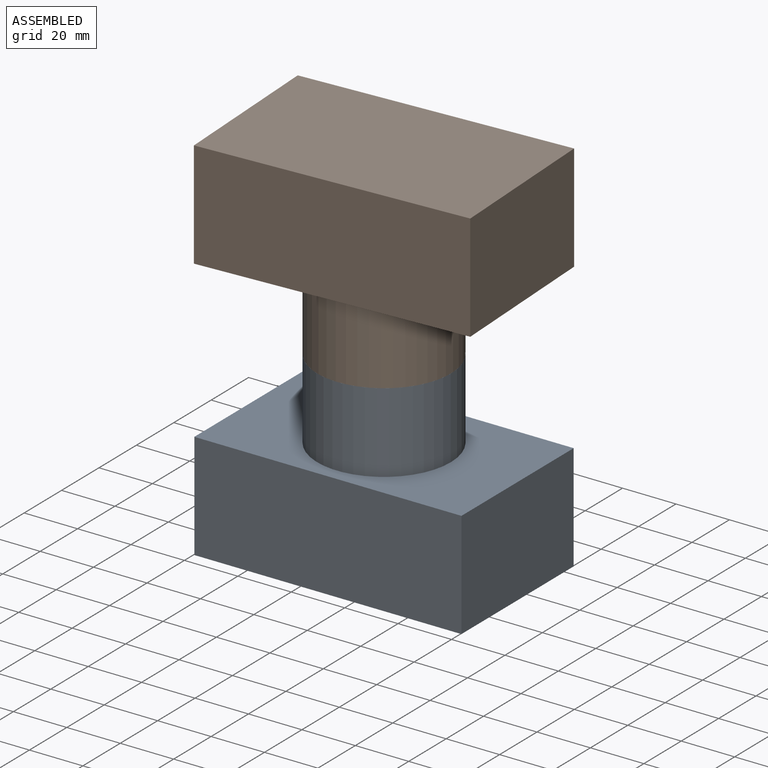
[diagram: assembled view]
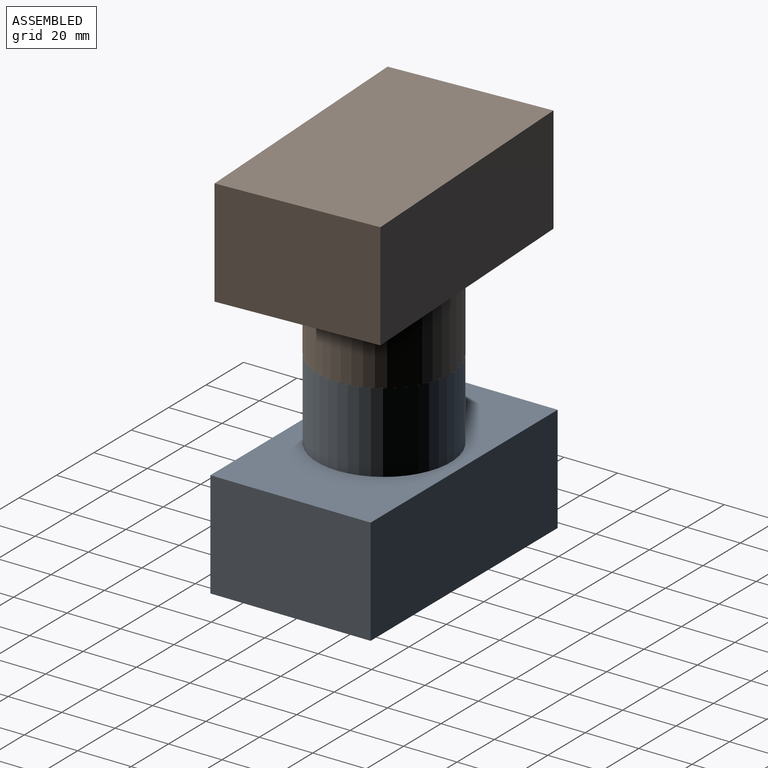
[diagram: assembled view, second angle]
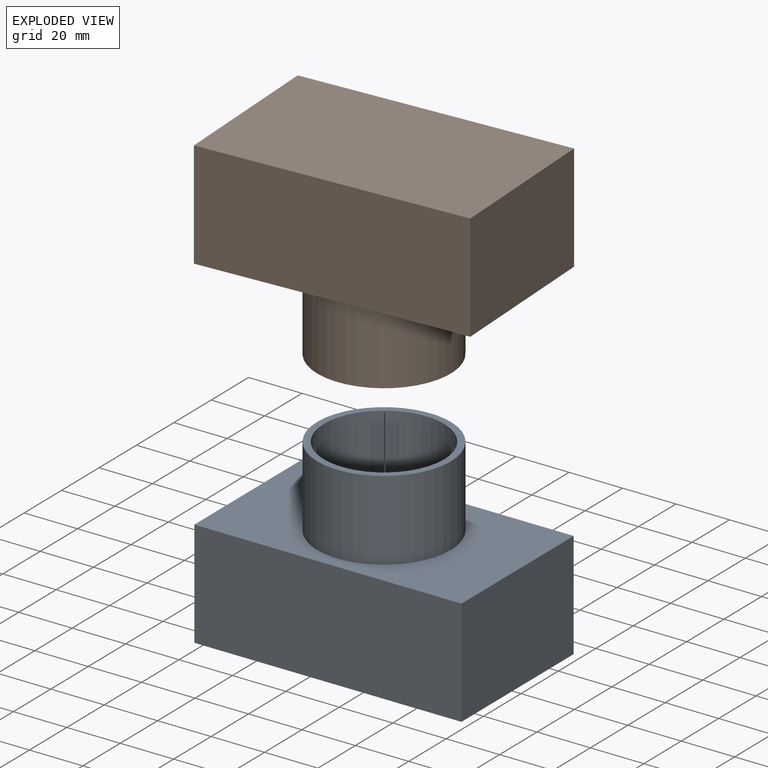
[diagram: exploded view]
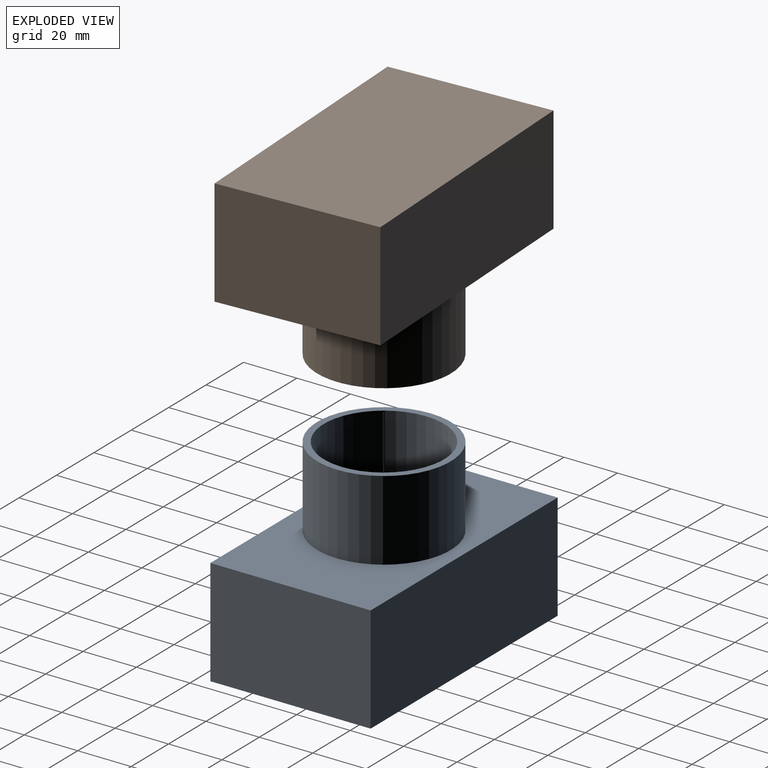
[diagram: exploded view, second angle]
ASSEMBLY  parts=2 mates=2
PART A: 15 faces, bbox 100x60x70 mm
  f0: plane 100x40mm, normal (0,-1,0), area 4000mm2, adj f1,f3,f4,f5
  f1: plane 60x40mm, normal (1,0,0), area 2400mm2, adj f0,f2,f4,f5
  f2: plane 100x40mm, normal (0,1,0), area 4000mm2, adj f1,f3,f4,f5
  f3: plane 60x40mm, normal (-1,0,0), area 2400mm2, adj f0,f2,f4,f5
  f4: plane 100x60mm, normal (0,0,1), area 4036.5mm2, adj f0,f1,f2,f3,f6
  f5: plane 100x60mm, normal (0,0,-1), area 6000mm2, adj f0,f1,f2,f3
  f6: cylinder r=25mm len=50mm, axis (0,0,-1), area 4712.4mm2, adj f4,f7
  f7: plane 50x50mm, normal (0,0,1), area 373.1mm2, adj f6,f14
  f8: plane 95x35mm, normal (0,1,0), area 3325mm2, adj f9,f11,f12,f13
  f9: plane 55x35mm, normal (-1,0,0), area 1925mm2, adj f8,f10,f12,f13
  f10: plane 95x35mm, normal (0,-1,0), area 3325mm2, adj f9,f11,f12,f13
  f11: plane 55x35mm, normal (1,0,0), area 1925mm2, adj f8,f10,f12,f13
  f12: plane 95x55mm, normal (0,0,-1), area 3634.6mm2, adj f8,f9,f10,f11,f14
  f13: plane 95x55mm, normal (0,0,1), area 5225mm2, adj f8,f9,f10,f11
  f14: cylinder r=22.5mm len=45mm, axis (0,0,-1), area 4594.6mm2, adj f7,f12
PART B: same geometry as A
PLACE A t=(10.25,-2.16,-12.12)mm fixed
PLACE B rot(axis=(0.03,-1,0),180deg) t=(10.25,-2.16,127.88)mm
MATE cylindrical B.f6 <-> A.f6  axis (0,0,1) through (10.25,-2.16,57.88)mm
MATE planar B.f6 <-> A.f6  axis (0,0,-1) through (10.25,-2.16,57.88)mm
